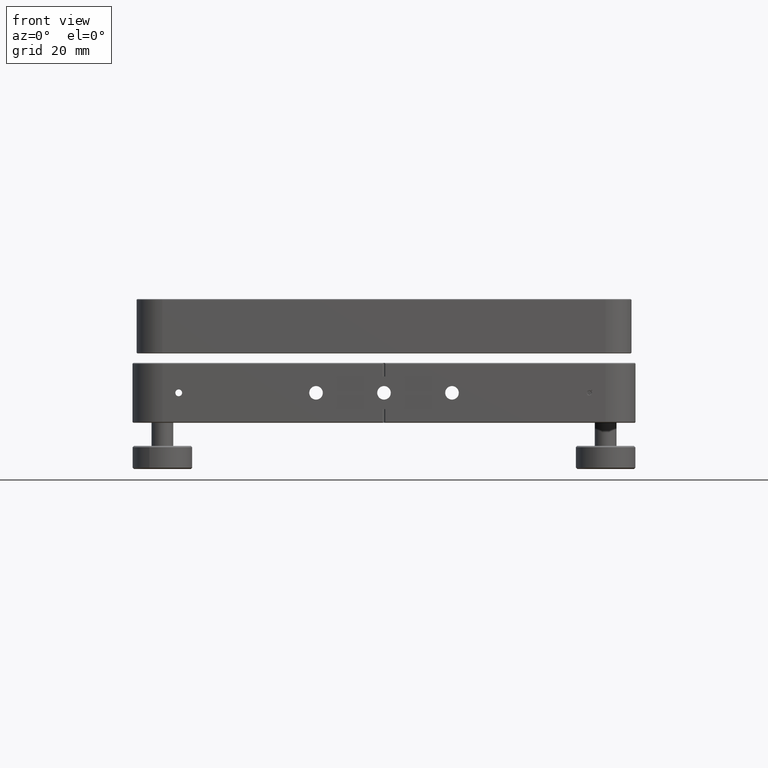
[diagram: clean part render]
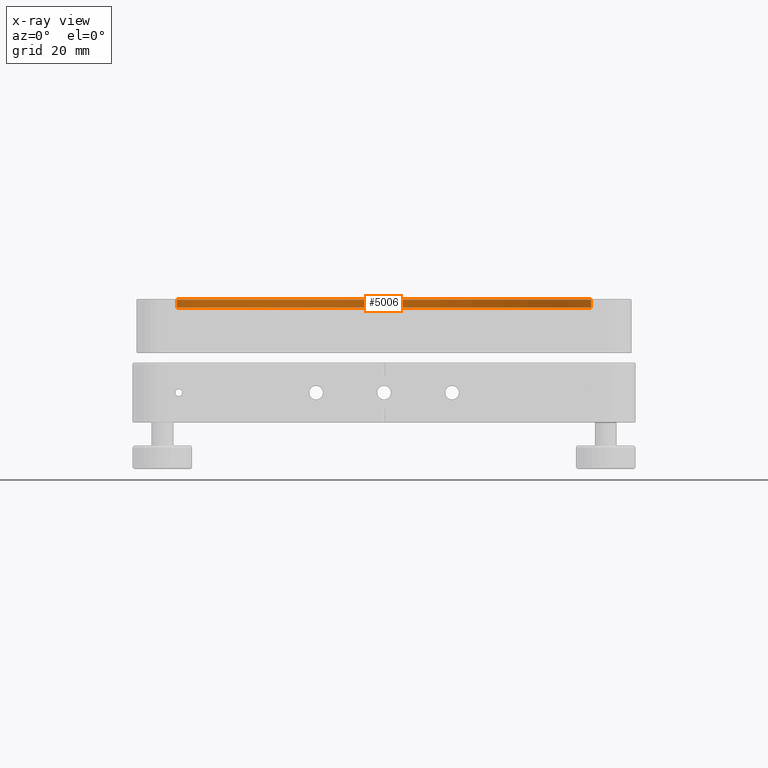
[diagram: x-ray — body ghosted, one internal face saturated and labeled with its STEP entity id]
A machine part, front view, then the same camera in x-ray: the body is ghosted and one INTERNAL B-rep face — a face not visible from any outside direction — is saturated and labeled: STEP entity #5006.
In plain terms, the highlighted cylindrical surface (partial cylindrical patch) has radius 76.2 mm, axis along (0, 0, 1).
Its self-contained STEP definition (entity closure, byte-faithful):
#63 = CARTESIAN_POINT ( 'NONE',  ( -76.15764751341902183, 2.540221490721768394, 33.59528137423860272 ) ) ;
#99 = ORIENTED_EDGE ( 'NONE', *, *, #18203, .T. ) ;
#282 = VECTOR ( 'NONE', #16831, 1000.000000000000000 ) ;
#868 = CARTESIAN_POINT ( 'NONE',  ( -6.696032378222366745E-13, 5.872038966181489995E-13, 34.24528137423858709 ) ) ;
#905 = CIRCLE ( 'NONE', #10416, 76.19999999999998863 ) ;
#1048 = DIRECTION ( 'NONE',  ( -0.000000000000000000, -0.000000000000000000, -1.000000000000000000 ) ) ;
#1388 = EDGE_LOOP ( 'NONE', ( #2344, #16657, #3816, #11183, #15786, #9716, #99, #14697 ) ) ;
#1413 = CIRCLE ( 'NONE', #9772, 76.19999999999998863 ) ;
#1493 = CARTESIAN_POINT ( 'NONE',  ( -76.15764751341902183, 2.540221490721768394, 30.99528137423860130 ) ) ;
#1538 = CARTESIAN_POINT ( 'NONE',  ( -6.696032378222366745E-13, 5.872038966181489995E-13, 30.99528137423860130 ) ) ;
#2344 = ORIENTED_EDGE ( 'NONE', *, *, #17765, .T. ) ;
#3026 = FACE_OUTER_BOUND ( 'NONE', #1388, .T. ) ;
#3251 = CARTESIAN_POINT ( 'NONE',  ( -76.13528484100774563, 3.139809258331118791, 34.24528137423858709 ) ) ;
#3433 = VERTEX_POINT ( 'NONE', #14206 ) ;
#3816 = ORIENTED_EDGE ( 'NONE', *, *, #5160, .T. ) ;
#4190 = CIRCLE ( 'NONE', #6256, 76.19999999999998863 ) ;
#4628 = DIRECTION ( 'NONE',  ( 0.9994441930894798487, -0.03333624003571091649, 0.000000000000000000 ) ) ;
#4699 = DIRECTION ( 'NONE',  ( 0.9994441930894798487, -0.03333624003571091649, 0.000000000000000000 ) ) ;
#4749 = DIRECTION ( 'NONE',  ( -0.000000000000000000, -0.000000000000000000, -1.000000000000000000 ) ) ;
#5006 = ADVANCED_FACE ( 'NONE', ( #3026 ), #5919, .T. ) ;
#5160 = EDGE_CURVE ( 'NONE', #9718, #17034, #1413, .T. ) ;
#5919 = CYLINDRICAL_SURFACE ( 'NONE', #17897, 76.19999999999998863 ) ;
#6084 = LINE ( 'NONE', #7129, #11627 ) ;
#6172 = LINE ( 'NONE', #9162, #8200 ) ;
#6256 = AXIS2_PLACEMENT_3D ( 'NONE', #8231, #1048, #17852 ) ;
#6359 = CARTESIAN_POINT ( 'NONE',  ( 76.17528832904945091, -1.940476226622571909, 34.24528137423858709 ) ) ;
#7129 = CARTESIAN_POINT ( 'NONE',  ( 76.17528832904945091, -1.940476226622571909, 30.99528137423860130 ) ) ;
#8200 = VECTOR ( 'NONE', #10373, 1000.000000000000000 ) ;
#8228 = CARTESIAN_POINT ( 'NONE',  ( -76.13528484100774563, 3.139809258331118791, 33.59528137423860272 ) ) ;
#8231 = CARTESIAN_POINT ( 'NONE',  ( -6.696032378222366745E-13, 5.872038966181489995E-13, 33.59528137423860272 ) ) ;
#9162 = CARTESIAN_POINT ( 'NONE',  ( 76.15764751341768601, -2.540221490720584452, 30.99528137423860130 ) ) ;
#9260 = DIRECTION ( 'NONE',  ( -0.000000000000000000, -0.000000000000000000, -1.000000000000000000 ) ) ;
#9716 = ORIENTED_EDGE ( 'NONE', *, *, #9751, .F. ) ;
#9718 = VERTEX_POINT ( 'NONE', #63 ) ;
#9751 = EDGE_CURVE ( 'NONE', #3433, #11366, #6084, .T. ) ;
#9772 = AXIS2_PLACEMENT_3D ( 'NONE', #16935, #16759, #14247 ) ;
#10062 = EDGE_CURVE ( 'NONE', #15631, #17846, #6172, .T. ) ;
#10373 = DIRECTION ( 'NONE',  ( 0.000000000000000000, 0.000000000000000000, 1.000000000000000000 ) ) ;
#10415 = CIRCLE ( 'NONE', #16637, 76.19999999999998863 ) ;
#10416 = AXIS2_PLACEMENT_3D ( 'NONE', #868, #9260, #16293 ) ;
#11183 = ORIENTED_EDGE ( 'NONE', *, *, #14378, .F. ) ;
#11366 = VERTEX_POINT ( 'NONE', #6359 ) ;
#11395 = EDGE_CURVE ( 'NONE', #14506, #11366, #905, .T. ) ;
#11627 = VECTOR ( 'NONE', #17131, 1000.000000000000000 ) ;
#11703 = CARTESIAN_POINT ( 'NONE',  ( 76.15764751341768601, -2.540221490720584452, 33.59528137423860272 ) ) ;
#11943 = VERTEX_POINT ( 'NONE', #18345 ) ;
#12940 = CARTESIAN_POINT ( 'NONE',  ( -76.13528484100774563, 3.139809258331118791, 30.99528137423860130 ) ) ;
#14206 = CARTESIAN_POINT ( 'NONE',  ( 76.17528832904945091, -1.940476226622571909, 33.59528137423860272 ) ) ;
#14247 = DIRECTION ( 'NONE',  ( 0.9994441930894798487, -0.03333624003571091649, 0.000000000000000000 ) ) ;
#14378 = EDGE_CURVE ( 'NONE', #14506, #17034, #15723, .T. ) ;
#14506 = VERTEX_POINT ( 'NONE', #3251 ) ;
#14697 = ORIENTED_EDGE ( 'NONE', *, *, #10062, .F. ) ;
#15631 = VERTEX_POINT ( 'NONE', #16744 ) ;
#15723 = LINE ( 'NONE', #12940, #15943 ) ;
#15762 = DIRECTION ( 'NONE',  ( 0.000000000000000000, 0.000000000000000000, 1.000000000000000000 ) ) ;
#15785 = CARTESIAN_POINT ( 'NONE',  ( -6.696032378222366745E-13, 5.872038966181489995E-13, 31.24528137423860130 ) ) ;
#15786 = ORIENTED_EDGE ( 'NONE', *, *, #11395, .T. ) ;
#15943 = VECTOR ( 'NONE', #4749, 1000.000000000000000 ) ;
#16054 = DIRECTION ( 'NONE',  ( 0.000000000000000000, 0.000000000000000000, 1.000000000000000000 ) ) ;
#16293 = DIRECTION ( 'NONE',  ( 0.9994441930894798487, -0.03333624003571091649, 0.000000000000000000 ) ) ;
#16637 = AXIS2_PLACEMENT_3D ( 'NONE', #15785, #16054, #4628 ) ;
#16657 = ORIENTED_EDGE ( 'NONE', *, *, #17063, .T. ) ;
#16744 = CARTESIAN_POINT ( 'NONE',  ( 76.15764751341768601, -2.540221490720584452, 31.24528137423860130 ) ) ;
#16759 = DIRECTION ( 'NONE',  ( -0.000000000000000000, -0.000000000000000000, -1.000000000000000000 ) ) ;
#16831 = DIRECTION ( 'NONE',  ( 0.000000000000000000, 0.000000000000000000, 1.000000000000000000 ) ) ;
#16935 = CARTESIAN_POINT ( 'NONE',  ( -6.696032378222366745E-13, 5.872038966181489995E-13, 33.59528137423860272 ) ) ;
#17034 = VERTEX_POINT ( 'NONE', #8228 ) ;
#17063 = EDGE_CURVE ( 'NONE', #11943, #9718, #18137, .T. ) ;
#17131 = DIRECTION ( 'NONE',  ( 0.000000000000000000, 0.000000000000000000, 1.000000000000000000 ) ) ;
#17765 = EDGE_CURVE ( 'NONE', #15631, #11943, #10415, .T. ) ;
#17846 = VERTEX_POINT ( 'NONE', #11703 ) ;
#17852 = DIRECTION ( 'NONE',  ( 0.9994441930894814030, -0.03333624003566475896, 0.000000000000000000 ) ) ;
#17897 = AXIS2_PLACEMENT_3D ( 'NONE', #1538, #15762, #4699 ) ;
#18137 = LINE ( 'NONE', #1493, #282 ) ;
#18203 = EDGE_CURVE ( 'NONE', #3433, #17846, #4190, .T. ) ;
#18345 = CARTESIAN_POINT ( 'NONE',  ( -76.15764751341902183, 2.540221490721768394, 31.24528137423860130 ) ) ;